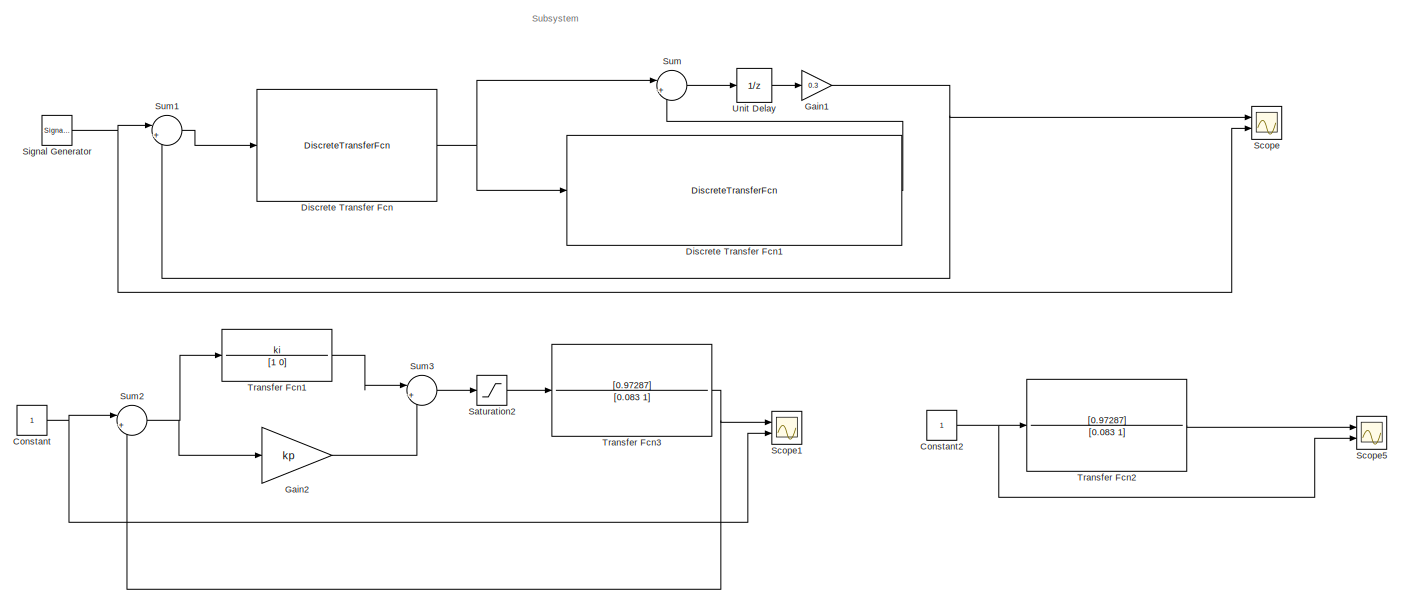
[diagram: root canvas - part 1/2, full width, top band]
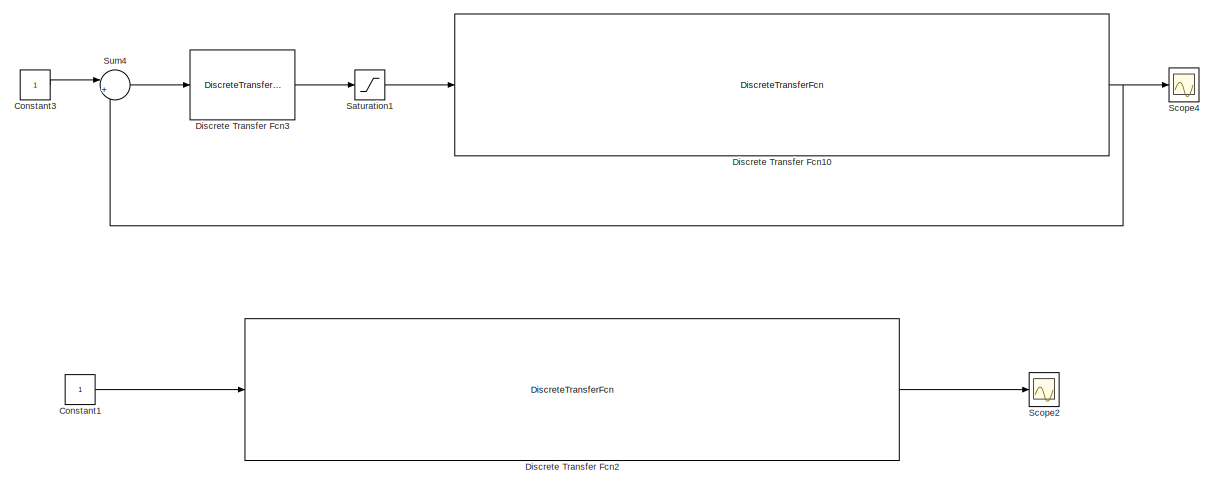
[diagram: root canvas - part 2/2, full width, bottom band]
MODEL slx_62c634f61461
KIND model
CONFIG AbsTol = auto
CONFIG EnableMultiTasking = off
CONFIG FixedStep = auto
CONFIG MaxStep = auto
CONFIG MinStep = auto
CONFIG RelTol = 1e-3
CONFIG SampleTimeConstraint = Unconstrained
CONFIG Solver = VariableStepAuto
CONFIG SolverName = VariableStepAuto
CONFIG StartTime = 0.0
CONFIG StopTime = 10
BLOCK [Constant] Constant
BLOCK [Constant] Constant1
BLOCK [Constant] Constant2
BLOCK [Constant] Constant3
BLOCK [DiscreteTransferFcn] Discrete Transfer Fcn
  Denominator = [1 -1]
  InputPortMap = u0
  Numerator = [30.2778 25.463*0.11-30.2778]
  Ports = [1, 1]
  SampleTime = 0.11
BLOCK [DiscreteTransferFcn] Discrete Transfer Fcn1
  Denominator = [1 -exp(-0.110/0.86)]
  InputPortMap = u0
  Numerator = [exp(-0.2728*0.110/0.86) -exp(-0.2728*0.110/0.86)]
  Ports = [1, 1]
  SampleTime = 0.11
BLOCK [DiscreteTransferFcn] Discrete Transfer Fcn10
  Denominator = [1 -exp(-ts/t) 0]
  InputPortMap = u0
  Numerator = k*[1-exp(-m*ts/t) (-exp(-ts/t)+exp(-m*ts/t))]
  Ports = [1, 1]
  SampleTime = ts
BLOCK [DiscreteTransferFcn] Discrete Transfer Fcn2
  Denominator = [1 -exp(-ts/t) 0]
  InputPortMap = u0
  Numerator = k*[1-exp(-m*ts/t) (-exp(-ts/t)+exp(-m*ts/t))]
  Ports = [1, 1]
  SampleTime = ts
BLOCK [DiscreteTransferFcn] Discrete Transfer Fcn3
  Denominator = [1 -1]
  InputPortMap = u0
  Numerator = [kp ki*ts-kp]
  Ports = [1, 1]
  SampleTime = ts
BLOCK [Gain] Gain1
  Gain = 0.3
  OutDataTypeStr = Inherit: Inherit via internal rule
  ParamDataTypeStr = Inherit: Inherit via internal rule
  SaturateOnIntegerOverflow = off
BLOCK [Gain] Gain2
  Gain = kp
  OutDataTypeStr = Inherit: Inherit via internal rule
  ParamDataTypeStr = Inherit: Inherit via internal rule
  SaturateOnIntegerOverflow = off
BLOCK [Saturate] Saturation1
  InputPortMap = u0
  LinearizeAsGain = off
  LowerLimit = 0.55
  Ports = [1, 1]
  UpperLimit = 2.75
BLOCK [Saturate] Saturation2
  InputPortMap = u0
  LinearizeAsGain = off
  LowerLimit = 0.55
  Ports = [1, 1]
  UpperLimit = 2.25
BLOCK [Scope] Scope
  NumInputPorts = 2
  Ports = [2]
  ScopeSpecificationString = Simulink.scopes.TimeScopeBlockCfg('CurrentConfiguration', extmgr.ConfigurationSet(extmgr.Configuration('Core','General UI',true),extmgr.Configuration('Core','Source UI',true),extmgr.Configuration('Sources','WiredSimulink',true),extmgr.Configuration('Visuals','Time Domain',true,'SerializedDisplays',{struct('MinYLimReal','-3.07767','MaxYLimReal','3.07663','YLabelReal','','MinYLimMag','0.00000','MaxY...<+1374ch>
BLOCK [Scope] Scope1
  NumInputPorts = 2
  Ports = [2]
  ScopeSpecificationString = Simulink.scopes.TimeScopeBlockCfg('CurrentConfiguration', extmgr.ConfigurationSet(extmgr.Configuration('Core','General UI',true),extmgr.Configuration('Core','Source UI',true),extmgr.Configuration('Sources','WiredSimulink',true,'DataLoggingVariableName','ScopeData1'),extmgr.Configuration('Visuals','Time Domain',true,'SerializedDisplays',{struct('MinYLimReal','0.93122','MaxYLimReal','1.06543','YLabe...<+1479ch>
BLOCK [Scope] Scope2
  NumInputPorts = 1
  Ports = [1]
  ScopeSpecificationString = Simulink.scopes.TimeScopeBlockCfg('CurrentConfiguration', extmgr.ConfigurationSet(extmgr.Configuration('Core','General UI',true),extmgr.Configuration('Core','Source UI',true),extmgr.Configuration('Sources','WiredSimulink',true,'DataLoggingVariableName','ScopeData1'),extmgr.Configuration('Visuals','Time Domain',true,'SerializedDisplays',{struct('MinYLimReal','-0.03306','MaxYLimReal','1.00707','YLab...<+1729ch>
BLOCK [Scope] Scope4
  NumInputPorts = 1
  Ports = [1]
  ScopeSpecificationString = Simulink.scopes.TimeScopeBlockCfg('CurrentConfiguration', extmgr.ConfigurationSet(extmgr.Configuration('Core','General UI',true,'FigureColor',[1 1 1]),extmgr.Configuration('Core','Source UI',true),extmgr.Configuration('Sources','WiredSimulink',true,'DataLoggingVariableName','ScopeData1'),extmgr.Configuration('Visuals','Time Domain',true,'SerializedDisplays',{struct('MinYLimReal','-0.01116','MaxYLi...<+1868ch>
BLOCK [Scope] Scope5
  NumInputPorts = 2
  Ports = [2]
  ScopeSpecificationString = Simulink.scopes.TimeScopeBlockCfg('CurrentConfiguration', extmgr.ConfigurationSet(extmgr.Configuration('Core','General UI',true,'FigureColor',[1 1 1]),extmgr.Configuration('Core','Source UI',true),extmgr.Configuration('Sources','WiredSimulink',true,'DataLoggingVariableName','ScopeData5'),extmgr.Configuration('Visuals','Time Domain',true,'SerializedDisplays',{struct('MinYLimReal','-0.01714','MaxYLi...<+1553ch>
BLOCK [SignalGenerator] Signal Generator
  Frequency = 1/5
  Ports = [0, 1]
  WaveForm = square
BLOCK [Sum] Sum
  IconShape = round
  InputSameDT = off
  Inputs = |+-
  OutDataTypeStr = Inherit: Inherit via internal rule
  Ports = [2, 1]
  SaturateOnIntegerOverflow = off
BLOCK [Sum] Sum1
  IconShape = round
  InputSameDT = off
  Inputs = |+-
  OutDataTypeStr = Inherit: Inherit via internal rule
  Ports = [2, 1]
  SaturateOnIntegerOverflow = off
BLOCK [Sum] Sum2
  IconShape = round
  InputSameDT = off
  Inputs = |+-
  OutDataTypeStr = Inherit: Inherit via internal rule
  Ports = [2, 1]
  SaturateOnIntegerOverflow = off
BLOCK [Sum] Sum3
  IconShape = round
  InputSameDT = off
  Inputs = |++
  OutDataTypeStr = Inherit: Inherit via internal rule
  Ports = [2, 1]
  SaturateOnIntegerOverflow = off
BLOCK [Sum] Sum4
  IconShape = round
  InputSameDT = off
  Inputs = |+-
  OutDataTypeStr = Inherit: Inherit via internal rule
  Ports = [2, 1]
  SaturateOnIntegerOverflow = off
BLOCK [TransferFcn] Transfer Fcn1
  Denominator = [1 0]
  Numerator = ki
BLOCK [TransferFcn] Transfer Fcn2
  Denominator = [0.083 1]
  Numerator = [0.97287]
BLOCK [TransferFcn] Transfer Fcn3
  Denominator = [0.083 1]
  Numerator = [0.97287]
BLOCK [UnitDelay] Unit Delay
  InputProcessing = Elements as channels (sample based)
  SampleTime = 0.11
ANNOTATION (root): Subsystem
LINE Constant1:1 -> Discrete Transfer Fcn2:1
NET Constant2:1 -> Scope5:2, Transfer Fcn2:1
LINE Constant3:1 -> Sum4:1
NET Constant:1 -> Scope1:2, Sum2:1
NET Discrete Transfer Fcn10:1 -> Scope4:1, Sum4:2
LINE Discrete Transfer Fcn1:1 -> Sum:2
LINE Discrete Transfer Fcn2:1 -> Scope2:1
LINE Discrete Transfer Fcn3:1 -> Saturation1:1
NET Discrete Transfer Fcn:1 -> Discrete Transfer Fcn1:1, Sum:1
NET Gain1:1 -> Scope:1, Sum1:2
LINE Gain2:1 -> Sum3:2
LINE Saturation1:1 -> Discrete Transfer Fcn10:1
LINE Saturation2:1 -> Transfer Fcn3:1
NET Signal Generator:1 -> Scope:2, Sum1:1
LINE Sum1:1 -> Discrete Transfer Fcn:1
NET Sum2:1 -> Gain2:1, Transfer Fcn1:1
LINE Sum3:1 -> Saturation2:1
LINE Sum4:1 -> Discrete Transfer Fcn3:1
LINE Sum:1 -> Unit Delay:1
LINE Transfer Fcn1:1 -> Sum3:1
LINE Transfer Fcn2:1 -> Scope5:1
NET Transfer Fcn3:1 -> Scope1:1, Sum2:2
LINE Unit Delay:1 -> Gain1:1
note: NET lines group one-source signal fan-out (src -> all destinations, sorted); 1:1 wires keep LINE
